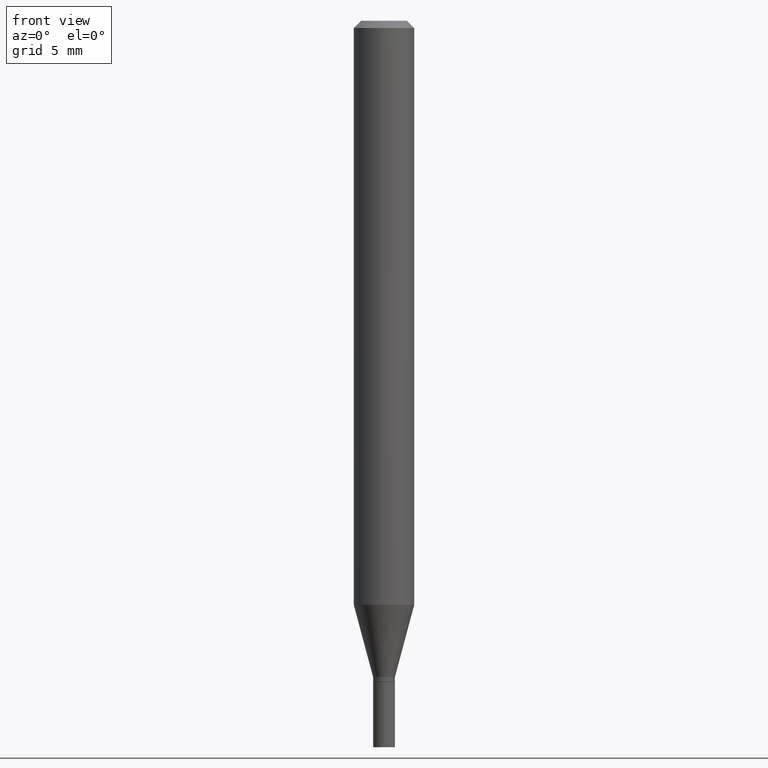
[diagram: clean part render]
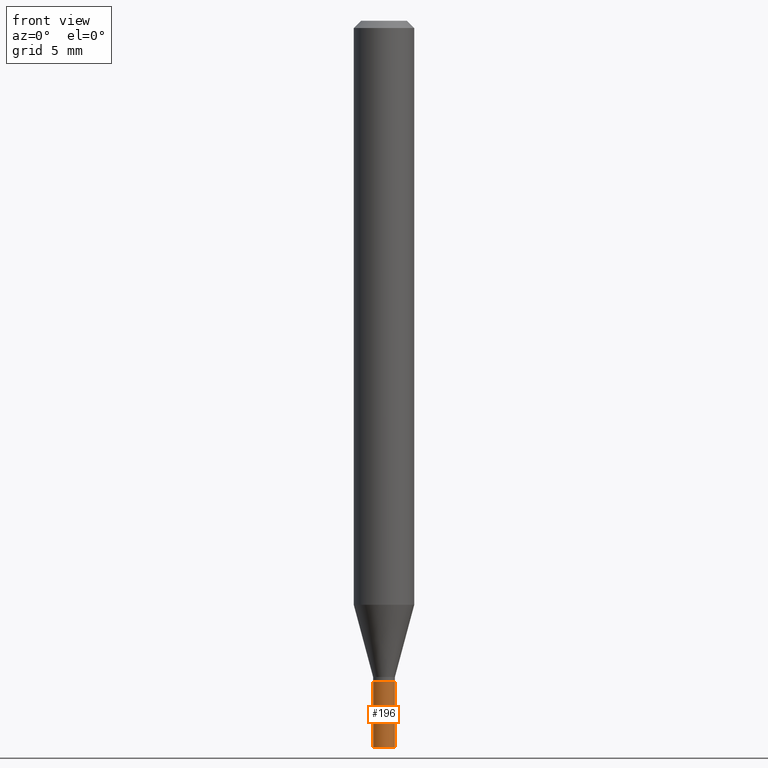
[diagram: same view with one face highlighted and labeled with its STEP entity id]
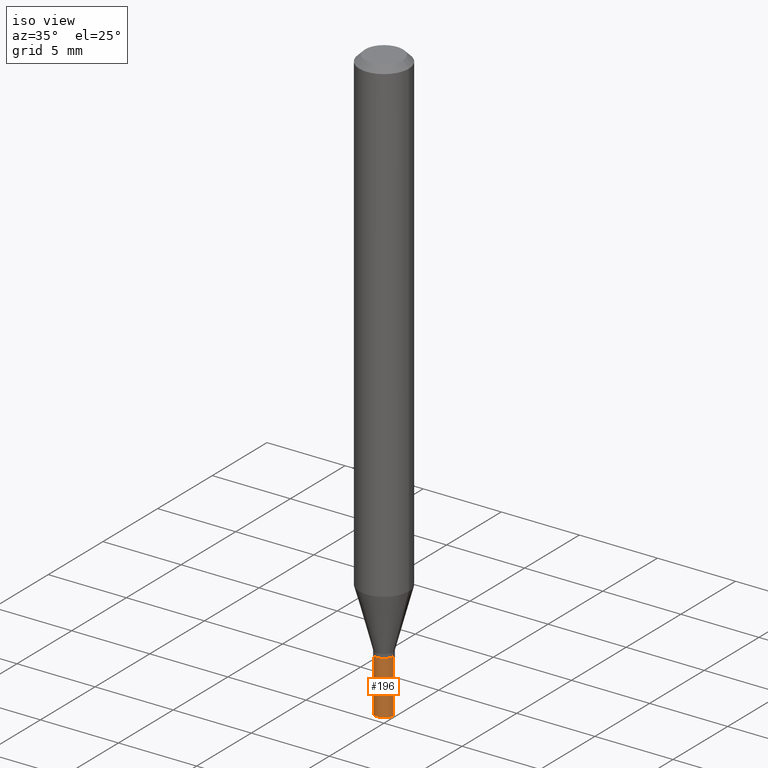
[diagram: same view with one face highlighted and labeled with its STEP entity id]
A machine part, front view. The second image highlights one B-rep face of the part: STEP entity #196.
A second angle (iso view) of the same face is appended — the face is thin or edge-on in the first view.
In plain terms, the highlighted cylindrical surface (edge-blend (fillet) strip) has radius 0.5715 mm, axis along (-0, 0, 1).
Its self-contained STEP definition (entity closure, byte-faithful):
#8 = DIRECTION ( 'NONE',  ( 1.000000000000000000, -6.982962677686269077E-15, 0.000000000000000000 ) ) ;
#29 = EDGE_CURVE ( 'NONE', #145, #308, #438, .T. ) ;
#31 = FACE_OUTER_BOUND ( 'NONE', #128, .T. ) ;
#34 = DIRECTION ( 'NONE',  ( 1.000000000000000000, -6.982962677686266711E-15, 4.876176775795935793E-29 ) ) ;
#73 = AXIS2_PLACEMENT_3D ( 'NONE', #423, #267, #34 ) ;
#86 = AXIS2_PLACEMENT_3D ( 'NONE', #121, #366, #255 ) ;
#97 = CYLINDRICAL_SURFACE ( 'NONE', #73, 0.02249999999999999917 ) ;
#99 = CARTESIAN_POINT ( 'NONE',  ( -0.02249999999999999917, -4.841674902346784228E-15, -1.500000000000000222 ) ) ;
#104 = VECTOR ( 'NONE', #334, 39.37007874015748143 ) ;
#121 = CARTESIAN_POINT ( 'NONE',  ( 3.668203209277704895E-29, -5.237222008264718177E-15, -1.500000000000000222 ) ) ;
#128 = EDGE_LOOP ( 'NONE', ( #315, #458, #263, #400 ) ) ;
#136 = DIRECTION ( 'NONE',  ( -2.445468806185136877E-29, 3.491481338843145188E-15, 1.000000000000000000 ) ) ;
#140 = CARTESIAN_POINT ( 'NONE',  ( 3.338064920442711836E-29, -4.765872027520893280E-15, -1.364999999999999991 ) ) ;
#145 = VERTEX_POINT ( 'NONE', #99 ) ;
#165 = VERTEX_POINT ( 'NONE', #466 ) ;
#182 = CARTESIAN_POINT ( 'NONE',  ( -0.02249999999999999917, 1.598721155460225359E-16, -1.106760395307353780E-30 ) ) ;
#196 = ADVANCED_FACE ( 'NONE', ( #31 ), #97, .T. ) ;
#202 = AXIS2_PLACEMENT_3D ( 'NONE', #140, #270, #8 ) ;
#207 = LINE ( 'NONE', #362, #412 ) ;
#236 = EDGE_CURVE ( 'NONE', #145, #277, #365, .T. ) ;
#255 = DIRECTION ( 'NONE',  ( 1.000000000000000000, -6.982962677686269077E-15, 0.000000000000000000 ) ) ;
#263 = ORIENTED_EDGE ( 'NONE', *, *, #278, .T. ) ;
#267 = DIRECTION ( 'NONE',  ( -2.445468806185136597E-29, 3.491481338843145583E-15, 1.000000000000000000 ) ) ;
#270 = DIRECTION ( 'NONE',  ( -2.445468806185136597E-29, 3.491481338843145583E-15, 1.000000000000000000 ) ) ;
#277 = VERTEX_POINT ( 'NONE', #433 ) ;
#278 = EDGE_CURVE ( 'NONE', #308, #165, #207, .T. ) ;
#298 = EDGE_CURVE ( 'NONE', #277, #165, #330, .T. ) ;
#308 = VERTEX_POINT ( 'NONE', #328 ) ;
#315 = ORIENTED_EDGE ( 'NONE', *, *, #236, .F. ) ;
#328 = CARTESIAN_POINT ( 'NONE',  ( 0.02249999999999999917, -5.394338668512659809E-15, -1.500000000000000222 ) ) ;
#330 = CIRCLE ( 'NONE', #202, 0.02249999999999999917 ) ;
#334 = DIRECTION ( 'NONE',  ( -2.445468806185136877E-29, 3.491481338843145188E-15, 1.000000000000000000 ) ) ;
#362 = CARTESIAN_POINT ( 'NONE',  ( 0.02249999999999999917, -1.571166602479409911E-16, 1.097139774554085483E-30 ) ) ;
#365 = LINE ( 'NONE', #182, #104 ) ;
#366 = DIRECTION ( 'NONE',  ( -2.445468806185136597E-29, 3.491481338843145583E-15, 1.000000000000000000 ) ) ;
#400 = ORIENTED_EDGE ( 'NONE', *, *, #298, .F. ) ;
#412 = VECTOR ( 'NONE', #136, 39.37007874015748143 ) ;
#423 = CARTESIAN_POINT ( 'NONE',  ( 0.000000000000000000, 0.000000000000000000, 0.000000000000000000 ) ) ;
#433 = CARTESIAN_POINT ( 'NONE',  ( -0.02249999999999999917, -4.841674902346784228E-15, -1.364999999999999991 ) ) ;
#438 = CIRCLE ( 'NONE', #86, 0.02249999999999999917 ) ;
#458 = ORIENTED_EDGE ( 'NONE', *, *, #29, .T. ) ;
#466 = CARTESIAN_POINT ( 'NONE',  ( 0.02249999999999999917, -4.922988687768834913E-15, -1.364999999999999991 ) ) ;